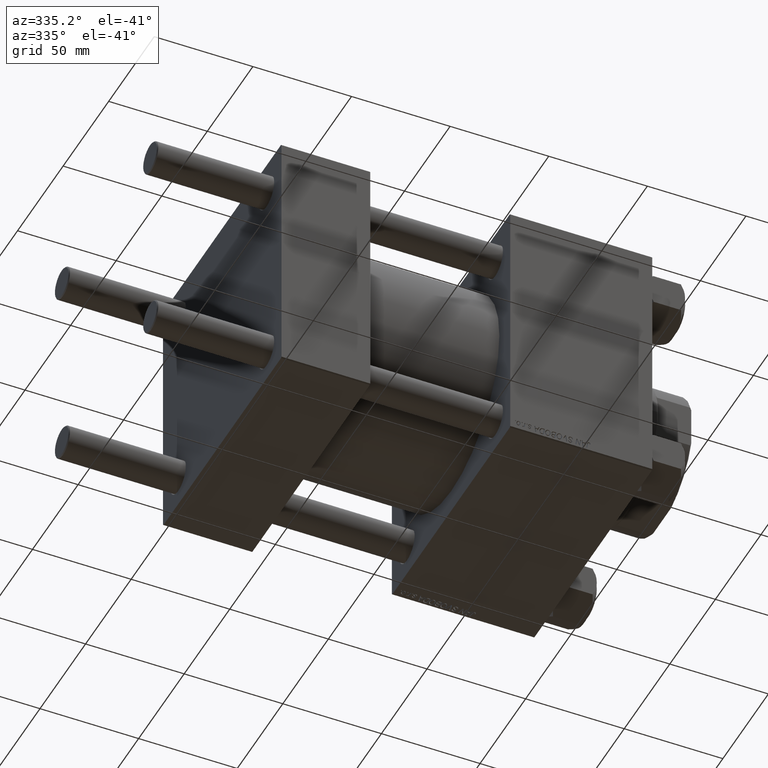
[diagram: clean part render]
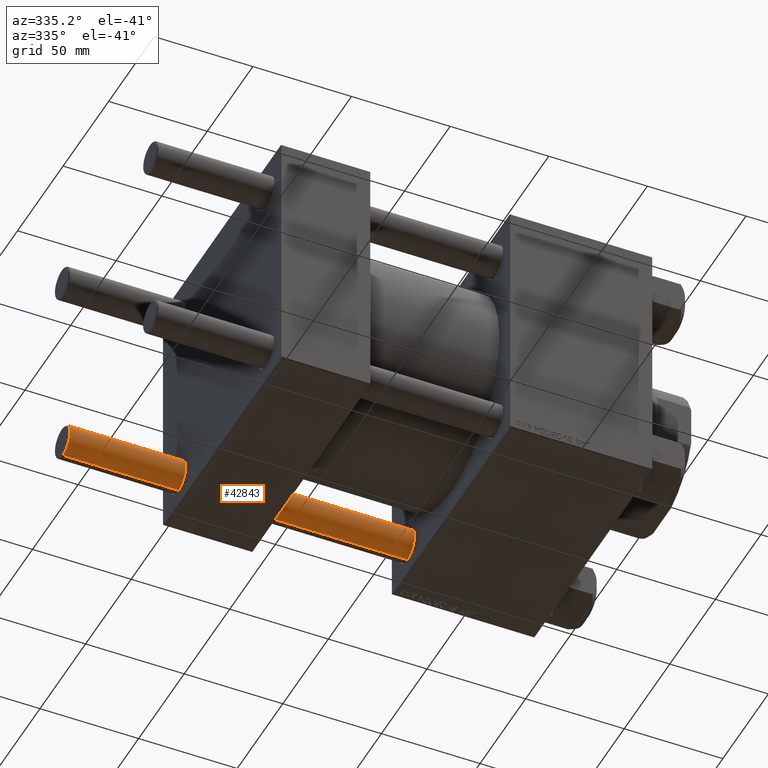
[diagram: same view with one face highlighted and labeled with its STEP entity id]
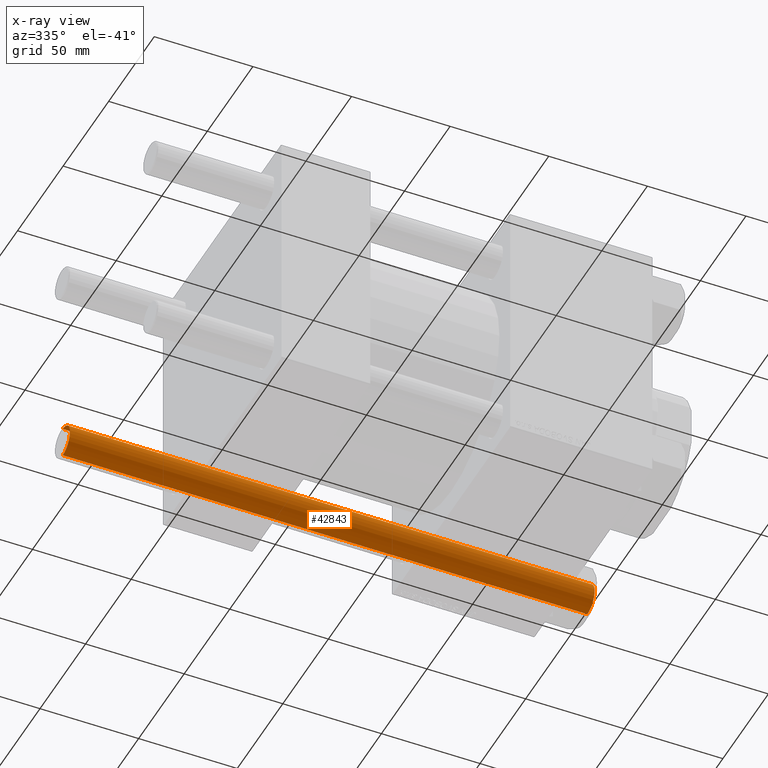
[diagram: x-ray of the same camera — body ghosted, the highlighted face saturated]
A machine part, auxiliary view. The second image highlights one B-rep face of the part: STEP entity #42843.
The next image is the same camera in x-ray: the body ghosted, the highlighted face saturated — about 0% of this face is hidden behind the body in this view.
In plain terms, the highlighted cylindrical surface (edge-blend (fillet) strip) has radius 8 mm, axis along (1, 0, -0).
Its self-contained STEP definition (entity closure, byte-faithful):
#468 = DIRECTION ( 'NONE',  ( -0.000000000000000000, -0.000000000000000000, 1.000000000000000000 ) ) ;
#557 = VERTEX_POINT ( 'NONE', #48280 ) ;
#1386 = ORIENTED_EDGE ( 'NONE', *, *, #49933, .T. ) ;
#2457 = DIRECTION ( 'NONE',  ( 1.000000000000000000, 0.000000000000000000, 0.000000000000000000 ) ) ;
#9502 = CARTESIAN_POINT ( 'NONE',  ( 0.000000000000000000, 0.000000000000000000, 267.0000000000000000 ) ) ;
#11636 = DIRECTION ( 'NONE',  ( 1.000000000000000000, 0.000000000000000000, 0.000000000000000000 ) ) ;
#12449 = VECTOR ( 'NONE', #40959, 1000.000000000000000 ) ;
#13747 = LINE ( 'NONE', #29242, #12449 ) ;
#16978 = AXIS2_PLACEMENT_3D ( 'NONE', #29364, #48459, #2457 ) ;
#17572 = ORIENTED_EDGE ( 'NONE', *, *, #24168, .F. ) ;
#21175 = FACE_OUTER_BOUND ( 'NONE', #30938, .T. ) ;
#23973 = LINE ( 'NONE', #28038, #37730 ) ;
#24168 = EDGE_CURVE ( 'NONE', #33930, #38701, #13747, .T. ) ;
#24253 = DIRECTION ( 'NONE',  ( -0.000000000000000000, -0.000000000000000000, -1.000000000000000000 ) ) ;
#24653 = ORIENTED_EDGE ( 'NONE', *, *, #42455, .T. ) ;
#27231 = VERTEX_POINT ( 'NONE', #27438 ) ;
#27438 = CARTESIAN_POINT ( 'NONE',  ( -8.000000000000000000, 0.000000000000000000, 266.5000000000000568 ) ) ;
#28038 = CARTESIAN_POINT ( 'NONE',  ( -8.000000000000000000, 0.000000000000000000, 267.0000000000000000 ) ) ;
#28317 = DIRECTION ( 'NONE',  ( -1.000000000000000000, 0.000000000000000000, 0.000000000000000000 ) ) ;
#28538 = EDGE_CURVE ( 'NONE', #27231, #557, #23973, .T. ) ;
#29242 = CARTESIAN_POINT ( 'NONE',  ( 8.000000000000000000, 9.797174393178825657E-16, 267.0000000000000000 ) ) ;
#29364 = CARTESIAN_POINT ( 'NONE',  ( 0.000000000000000000, 0.000000000000000000, 266.5000000000000568 ) ) ;
#30793 = AXIS2_PLACEMENT_3D ( 'NONE', #50300, #468, #11636 ) ;
#30938 = EDGE_LOOP ( 'NONE', ( #17572, #1386, #48086, #24653 ) ) ;
#33930 = VERTEX_POINT ( 'NONE', #41952 ) ;
#34023 = AXIS2_PLACEMENT_3D ( 'NONE', #9502, #24253, #28317 ) ;
#37730 = VECTOR ( 'NONE', #47382, 1000.000000000000000 ) ;
#38701 = VERTEX_POINT ( 'NONE', #39218 ) ;
#39218 = CARTESIAN_POINT ( 'NONE',  ( 8.000000000000000000, 9.797174393178825657E-16, 0.5000000000000559552 ) ) ;
#40959 = DIRECTION ( 'NONE',  ( -0.000000000000000000, -0.000000000000000000, -1.000000000000000000 ) ) ;
#41952 = CARTESIAN_POINT ( 'NONE',  ( 8.000000000000000000, 9.797174393178825657E-16, 266.5000000000000568 ) ) ;
#42455 = EDGE_CURVE ( 'NONE', #557, #38701, #50314, .T. ) ;
#42843 = ADVANCED_FACE ( 'NONE', ( #21175 ), #44322, .T. ) ;
#44322 = CYLINDRICAL_SURFACE ( 'NONE', #34023, 8.000000000000000000 ) ;
#44562 = CIRCLE ( 'NONE', #16978, 8.000000000000000000 ) ;
#47382 = DIRECTION ( 'NONE',  ( -0.000000000000000000, -0.000000000000000000, -1.000000000000000000 ) ) ;
#48086 = ORIENTED_EDGE ( 'NONE', *, *, #28538, .T. ) ;
#48280 = CARTESIAN_POINT ( 'NONE',  ( -8.000000000000000000, 0.000000000000000000, 0.5000000000000559552 ) ) ;
#48459 = DIRECTION ( 'NONE',  ( 0.000000000000000000, 0.000000000000000000, -1.000000000000000000 ) ) ;
#49933 = EDGE_CURVE ( 'NONE', #33930, #27231, #44562, .T. ) ;
#50300 = CARTESIAN_POINT ( 'NONE',  ( 0.000000000000000000, 0.000000000000000000, 0.5000000000000559552 ) ) ;
#50314 = CIRCLE ( 'NONE', #30793, 8.000000000000000000 ) ;